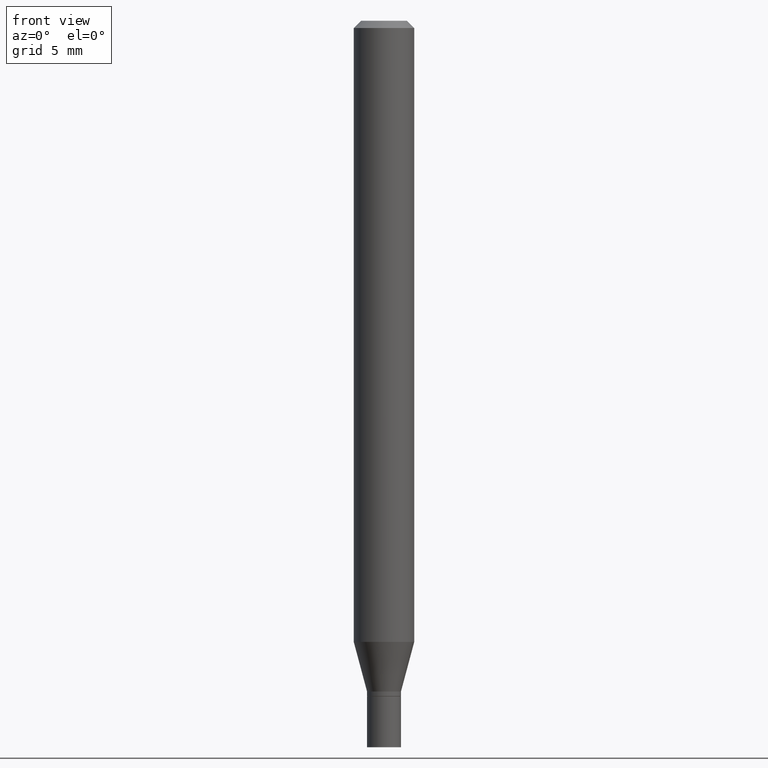
[diagram: clean part render]
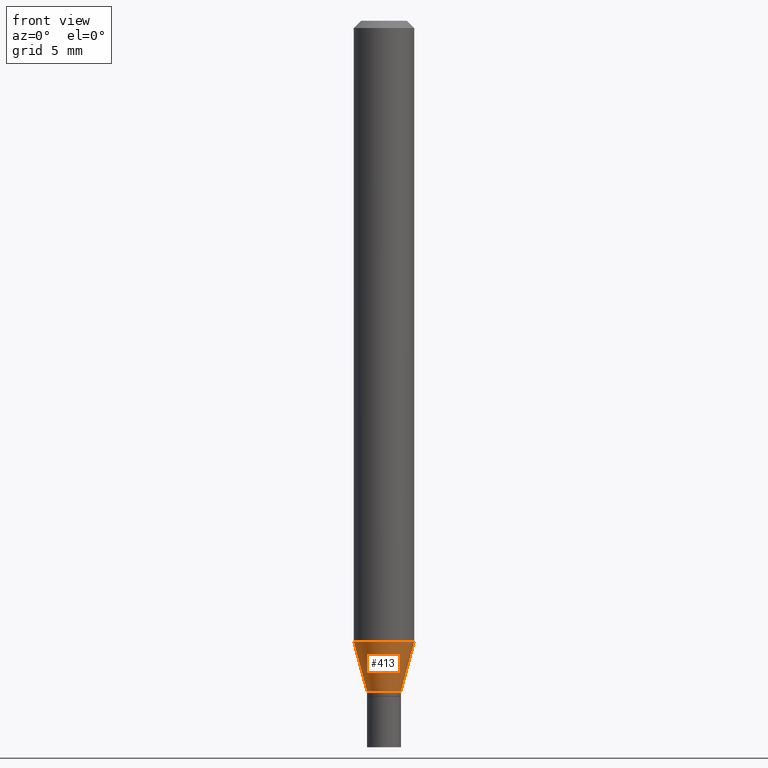
[diagram: same view with one face highlighted and labeled with its STEP entity id]
A machine part, front view. The second image highlights one B-rep face of the part: STEP entity #413.
In plain terms, the highlighted conical surface has half-angle 15 deg.
Its self-contained STEP definition (entity closure, byte-faithful):
#2 = DIRECTION ( 'NONE',  ( 0.2588190451025205729, 1.565188264969627490E-15, 0.9659258262890682012 ) ) ;
#8 = EDGE_CURVE ( 'NONE', #317, #40, #327, .T. ) ;
#19 = AXIS2_PLACEMENT_3D ( 'NONE', #263, #376, #233 ) ;
#24 = ORIENTED_EDGE ( 'NONE', *, *, #43, .F. ) ;
#38 = CARTESIAN_POINT ( 'NONE',  ( -0.03499999999999992700, -4.310144266548890801E-15, -1.385000000000000009 ) ) ;
#40 = VERTEX_POINT ( 'NONE', #60 ) ;
#42 = DIRECTION ( 'NONE',  ( -0.2588190451025205729, 5.211531920934544731E-15, 0.9659258262890682012 ) ) ;
#43 = EDGE_CURVE ( 'NONE', #111, #106, #225, .T. ) ;
#60 = CARTESIAN_POINT ( 'NONE',  ( 0.03499999999999992700, -5.080105348016775756E-15, -1.385000000000000009 ) ) ;
#66 = LINE ( 'NONE', #352, #91 ) ;
#91 = VECTOR ( 'NONE', #2, 39.37007874015748854 ) ;
#92 = DIRECTION ( 'NONE',  ( -2.445468806185136597E-29, 3.491481338843145583E-15, 1.000000000000000000 ) ) ;
#106 = VERTEX_POINT ( 'NONE', #205 ) ;
#108 = ORIENTED_EDGE ( 'NONE', *, *, #371, .F. ) ;
#111 = VERTEX_POINT ( 'NONE', #427 ) ;
#116 = DIRECTION ( 'NONE',  ( -2.445468806185136597E-29, 3.491481338843145583E-15, 1.000000000000000000 ) ) ;
#156 = EDGE_LOOP ( 'NONE', ( #108, #199, #346, #24 ) ) ;
#160 = CONICAL_SURFACE ( 'NONE', #387, 0.03499999999999992700, 0.2617993877991492968 ) ;
#199 = ORIENTED_EDGE ( 'NONE', *, *, #8, .T. ) ;
#205 = CARTESIAN_POINT ( 'NONE',  ( 0.06250000000000000000, -4.913801213521513807E-15, -1.282368602791855716 ) ) ;
#206 = AXIS2_PLACEMENT_3D ( 'NONE', #409, #92, #229 ) ;
#221 = CARTESIAN_POINT ( 'NONE',  ( -0.03499999999999992700, -4.587011696781722870E-15, -1.385000000000000009 ) ) ;
#225 = CIRCLE ( 'NONE', #206, 0.06250000000000000000 ) ;
#229 = DIRECTION ( 'NONE',  ( 1.000000000000000000, -6.982962677686262766E-15, 0.000000000000000000 ) ) ;
#233 = DIRECTION ( 'NONE',  ( 1.000000000000000000, -6.982962677686264344E-15, 0.000000000000000000 ) ) ;
#237 = EDGE_CURVE ( 'NONE', #40, #106, #66, .T. ) ;
#258 = DIRECTION ( 'NONE',  ( 1.000000000000000000, -6.982962677686264344E-15, 0.000000000000000000 ) ) ;
#263 = CARTESIAN_POINT ( 'NONE',  ( 3.386974296566414366E-29, -4.835701654297756579E-15, -1.385000000000000009 ) ) ;
#291 = FACE_OUTER_BOUND ( 'NONE', #156, .T. ) ;
#298 = VECTOR ( 'NONE', #42, 39.37007874015748854 ) ;
#317 = VERTEX_POINT ( 'NONE', #38 ) ;
#327 = CIRCLE ( 'NONE', #19, 0.03499999999999992700 ) ;
#346 = ORIENTED_EDGE ( 'NONE', *, *, #237, .T. ) ;
#352 = CARTESIAN_POINT ( 'NONE',  ( 0.03499999999999992700, -5.080105348016775756E-15, -1.385000000000000009 ) ) ;
#366 = CARTESIAN_POINT ( 'NONE',  ( 3.386974296566414366E-29, -4.835701654297756579E-15, -1.385000000000000009 ) ) ;
#367 = LINE ( 'NONE', #221, #298 ) ;
#371 = EDGE_CURVE ( 'NONE', #317, #111, #367, .T. ) ;
#376 = DIRECTION ( 'NONE',  ( -2.445468806185136597E-29, 3.491481338843145583E-15, 1.000000000000000000 ) ) ;
#387 = AXIS2_PLACEMENT_3D ( 'NONE', #366, #116, #258 ) ;
#409 = CARTESIAN_POINT ( 'NONE',  ( 3.135992416158700481E-29, -4.477366046166122137E-15, -1.282368602791855716 ) ) ;
#413 = ADVANCED_FACE ( 'NONE', ( #291 ), #160, .T. ) ;
#427 = CARTESIAN_POINT ( 'NONE',  ( -0.06250000000000000000, -4.033276836316059521E-15, -1.282368602791855716 ) ) ;